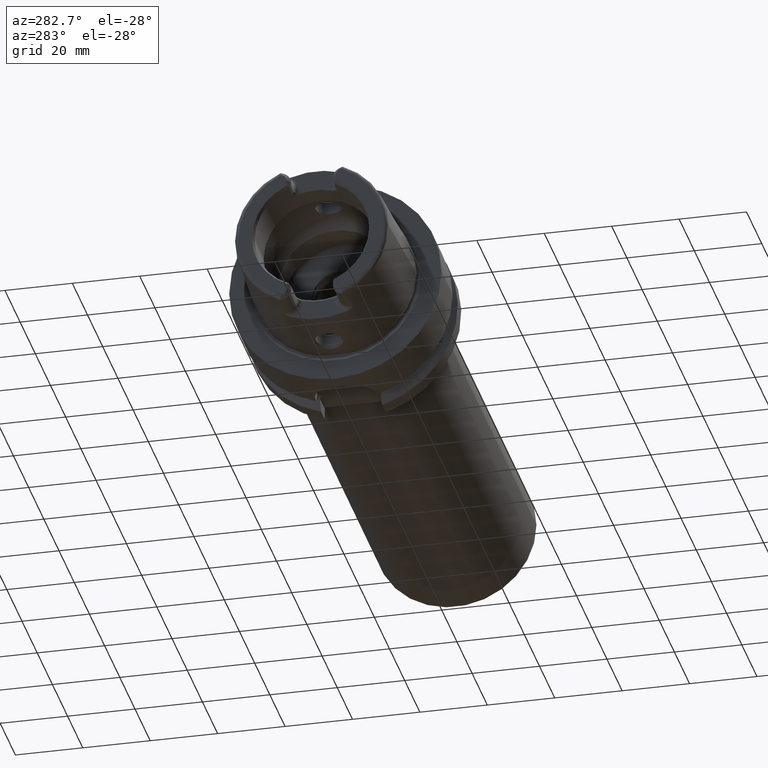
[diagram: clean part render]
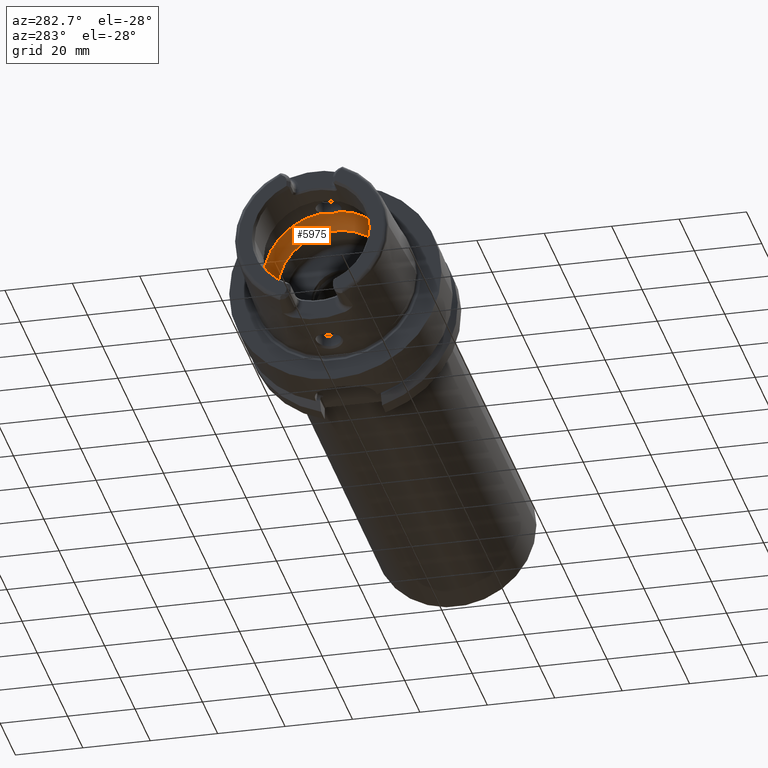
[diagram: same view with one face highlighted and labeled with its STEP entity id]
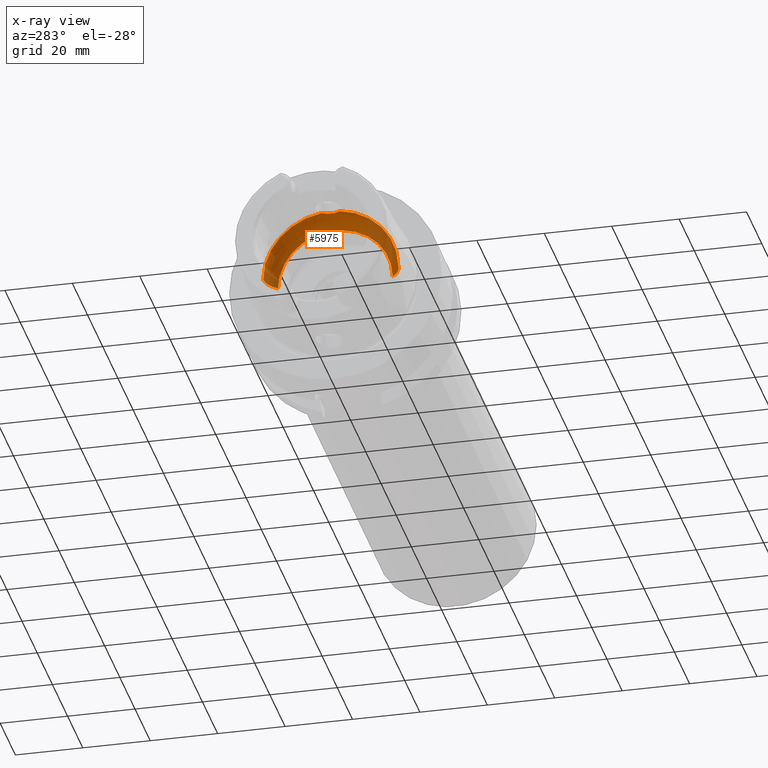
[diagram: x-ray of the same camera — body ghosted, the highlighted face saturated]
A machine part, auxiliary view. The second image highlights one B-rep face of the part: STEP entity #5975.
The next image is the same camera in x-ray: the body ghosted, the highlighted face saturated — about 21% of this face is hidden behind the body in this view.
In plain terms, the highlighted toroidal blend (fillet) surface has major radius 12 mm and minor (blend) radius 8 mm.
Its self-contained STEP definition (entity closure, byte-faithful):
#2269=CARTESIAN_POINT('',(-5.25E0,0.E0,1.992470689575E1));
#2270=CARTESIAN_POINT('',(-5.25E0,1.634249880127E-1,1.992470689575E1));
#2271=CARTESIAN_POINT('',(-5.271317000323E0,4.905125142286E-1,
1.992366860007E1));
#2272=CARTESIAN_POINT('',(-5.367938073203E0,9.753406287590E-1,
1.991846757388E1));
#2273=CARTESIAN_POINT('',(-5.525913254439E0,1.440181253243E0,1.990841194030E1));
#2274=CARTESIAN_POINT('',(-5.745012466850E0,1.883704211740E0,1.989126222791E1));
#2275=CARTESIAN_POINT('',(-6.017092970824E0,2.289932260455E0,1.986481338490E1));
#2276=CARTESIAN_POINT('',(-6.231037578916E0,2.534045566496E0,1.983915065875E1));
#2277=CARTESIAN_POINT('',(-6.344997998398E0,2.648294615690E0,1.982388800484E1));
#2279=CARTESIAN_POINT('',(-6.344997998398E0,-2.648294615690E0,
1.982388800484E1));
#2280=CARTESIAN_POINT('',(-6.231045843136E0,-2.534053851646E0,
1.983914955193E1));
#2281=CARTESIAN_POINT('',(-6.017093742818E0,-2.289943440357E0,
1.986481395775E1));
#2282=CARTESIAN_POINT('',(-5.744901596897E0,-1.883527876206E0,
1.989127237006E1));
#2283=CARTESIAN_POINT('',(-5.525828432433E0,-1.439963272778E0,
1.990841763195E1));
#2284=CARTESIAN_POINT('',(-5.367908372542E0,-9.752317929729E-1,
1.991846926373E1));
#2285=CARTESIAN_POINT('',(-5.271289109403E0,-4.903031116233E-1,
1.992367002777E1));
#2286=CARTESIAN_POINT('',(-5.25E0,-1.633414179458E-1,1.992470689575E1));
#2287=CARTESIAN_POINT('',(-5.25E0,0.E0,1.992470689575E1));
#2289=CARTESIAN_POINT('',(-1.E-1,0.E0,0.E0));
#2290=DIRECTION('',(1.E0,0.E0,0.E0));
#2291=DIRECTION('',(0.E0,1.E0,0.E0));
#2292=AXIS2_PLACEMENT_3D('',#2289,#2290,#2291);
#2314=CARTESIAN_POINT('',(-6.344997998398E0,0.E0,0.E0));
#2315=DIRECTION('',(1.E0,0.E0,0.E0));
#2316=DIRECTION('',(0.E0,1.E0,0.E0));
#2317=AXIS2_PLACEMENT_3D('',#2314,#2315,#2316);
#2319=CARTESIAN_POINT('',(-6.344997998398E0,0.E0,0.E0));
#2320=DIRECTION('',(1.E0,0.E0,0.E0));
#2321=DIRECTION('',(0.E0,-1.324147307845E-1,9.911944002421E-1));
#2322=AXIS2_PLACEMENT_3D('',#2319,#2320,#2321);
#2412=CARTESIAN_POINT('',(-6.344997998398E0,1.2E1,0.E0));
#2413=DIRECTION('',(0.E0,0.E0,1.E0));
#2414=DIRECTION('',(7.806247497998E-1,6.25E-1,0.E0));
#2415=AXIS2_PLACEMENT_3D('',#2412,#2413,#2414);
#2422=CARTESIAN_POINT('',(-6.344997998398E0,-1.2E1,0.E0));
#2423=DIRECTION('',(0.E0,0.E0,-1.E0));
#2424=DIRECTION('',(7.806247497998E-1,-6.25E-1,0.E0));
#2425=AXIS2_PLACEMENT_3D('',#2422,#2423,#2424);
#2691=CARTESIAN_POINT('',(-1.E-1,1.7E1,0.E0));
#2692=VERTEX_POINT('',#2691);
#2693=CARTESIAN_POINT('',(-6.344997998398E0,2.E1,0.E0));
#2694=VERTEX_POINT('',#2693);
#2703=CARTESIAN_POINT('',(-1.E-1,-1.7E1,0.E0));
#2704=VERTEX_POINT('',#2703);
#2705=CARTESIAN_POINT('',(-6.344997998398E0,-2.E1,0.E0));
#2706=VERTEX_POINT('',#2705);
#2874=VERTEX_POINT('',#2269);
#2875=VERTEX_POINT('',#2277);
#2876=VERTEX_POINT('',#2279);
#5956=CARTESIAN_POINT('',(-6.344997998398E0,0.E0,0.E0));
#5957=DIRECTION('',(1.E0,0.E0,0.E0));
#5958=DIRECTION('',(0.E0,-1.E0,0.E0));
#5959=AXIS2_PLACEMENT_3D('',#5956,#5957,#5958);
#5960=TOROIDAL_SURFACE('',#5959,1.2E1,8.E0);
#5961=ORIENTED_EDGE('',*,*,#5933,.F.);
#5962=ORIENTED_EDGE('',*,*,#5699,.F.);
#5964=ORIENTED_EDGE('',*,*,#5963,.T.);
#5966=ORIENTED_EDGE('',*,*,#5965,.F.);
#5968=ORIENTED_EDGE('',*,*,#5967,.F.);
#5970=ORIENTED_EDGE('',*,*,#5969,.T.);
#5972=ORIENTED_EDGE('',*,*,#5971,.T.);
#5973=EDGE_LOOP('',(#5961,#5962,#5964,#5966,#5968,#5970,#5972));
#5974=FACE_OUTER_BOUND('',#5973,.F.);
#5975=ADVANCED_FACE('',(#5974),#5960,.F.);
#2278=B_SPLINE_CURVE_WITH_KNOTS('',3,(#2269,#2270,#2271,#2272,#2273,#2274,#2275,
#2276,#2277),.UNSPECIFIED.,.F.,.F.,(4,1,1,1,1,1,4),(0.E0,1.666666666667E-1,
3.333333333333E-1,5.E-1,6.666666666667E-1,8.333333333333E-1,1.E0),
.UNSPECIFIED.);
#2288=B_SPLINE_CURVE_WITH_KNOTS('',3,(#2279,#2280,#2281,#2282,#2283,#2284,#2285,
#2286,#2287),.UNSPECIFIED.,.F.,.F.,(4,1,1,1,1,1,4),(0.E0,1.666666666667E-1,
3.333333333333E-1,5.E-1,6.666666666667E-1,8.333333333333E-1,1.E0),
.UNSPECIFIED.);
#2293=CIRCLE('',#2292,1.7E1);
#2318=CIRCLE('',#2317,2.E1);
#2323=CIRCLE('',#2322,2.E1);
#2416=CIRCLE('',#2415,8.E0);
#2426=CIRCLE('',#2425,8.E0);
#5699=EDGE_CURVE('',#2876,#2874,#2288,.T.);
#5933=EDGE_CURVE('',#2874,#2875,#2278,.T.);
#5963=EDGE_CURVE('',#2876,#2706,#2323,.T.);
#5965=EDGE_CURVE('',#2704,#2706,#2426,.T.);
#5967=EDGE_CURVE('',#2692,#2704,#2293,.T.);
#5969=EDGE_CURVE('',#2692,#2694,#2416,.T.);
#5971=EDGE_CURVE('',#2694,#2875,#2318,.T.);